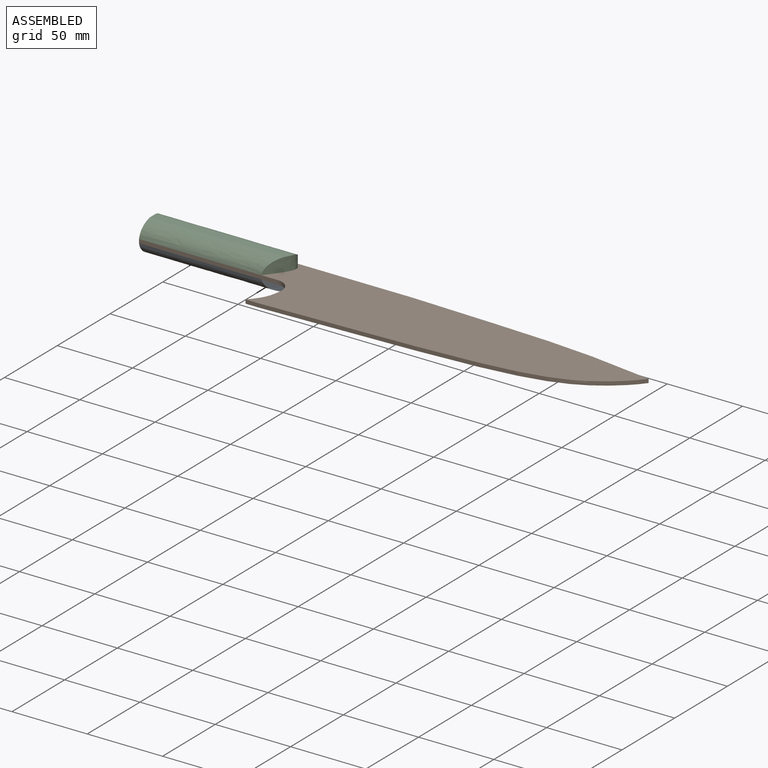
[diagram: assembled view]
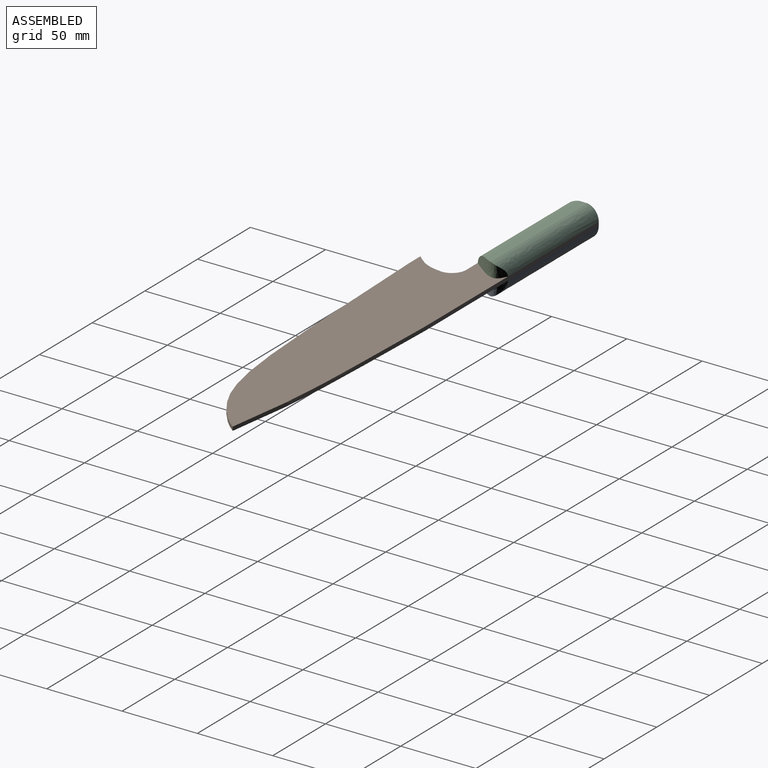
[diagram: assembled view, second angle]
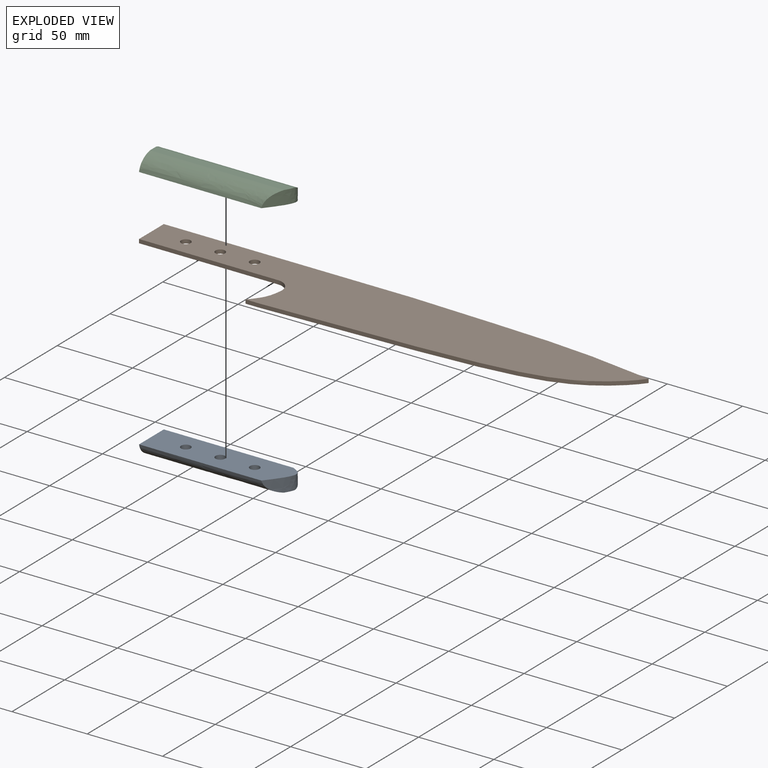
[diagram: exploded view]
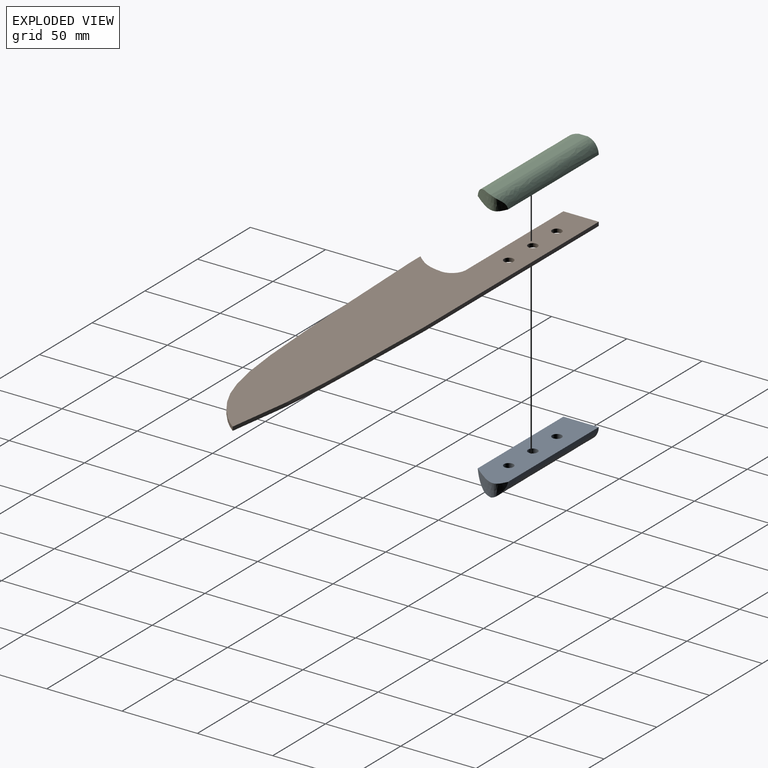
[diagram: exploded view, second angle]
ASSEMBLY  parts=3 mates=2
PART A: 12 faces, bbox 92.8x9.6x23.5 mm
  f0: plane 23.5x9.56mm, normal (-1,0,0), area 169.8mm2, adj f2,f3,f4,f5
  f1: extruded ~23.5x10.94mm, area 207.2mm2, adj f2,f3,f4,f5
  f2: plane 92x5.93mm, normal (0,1,0), area 523.1mm2, adj f0,f1,f3,f4
  f3: extruded ~89.07x10.35mm, area 1237.9mm2, adj f0,f1,f2,f5
  f4: extruded ~92.13x9.08mm, area 1135.6mm2, adj f0,f1,f2,f5
  f5: plane 92.82x23.5mm, normal (0,-1,0), area 1978.9mm2, adj f0,f1,f3,f4,f6,f8,f10
  f6: cylinder r=3.17mm len=6.35mm, axis (0,-1,0), area 126.7mm2, adj f5,f7
  f7: plane 6.35x6.35mm, normal (0,-1,0), area 31.7mm2, adj f6
  f8: cylinder r=3.17mm len=6.35mm, axis (0,-1,0), area 126.7mm2, adj f5,f9
  f9: plane 6.35x6.35mm, normal (0,-1,0), area 31.7mm2, adj f8
  f10: cylinder r=3.17mm len=6.35mm, axis (0,-1,0), area 126.7mm2, adj f5,f11
  f11: plane 6.35x6.35mm, normal (0,-1,0), area 31.7mm2, adj f10
PART B: 13 faces, bbox 330.2x54x2.5 mm
  f0: plane 165.1x2.54mm, normal (0,1,0), area 419.4mm2, adj f1,f7,f8,f9
  f1: plane 23.5x2.54mm, normal (-1,0,0), area 59.7mm2, adj f0,f2,f8,f9
  f2: plane 92.08x2.54mm, normal (0,-1,0), area 233.9mm2, adj f1,f3,f8,f9
  f3: cylinder r=9.53mm len=9.53mm, axis (0,0,-1), area 38mm2, adj f2,f4,f8,f9
  f4: extruded ~20.96x9.53mm, area 60mm2, adj f3,f5,f8,f9
  f5: plane 9.53x2.54mm, normal (0,-1,0), area 24.2mm2, adj f4,f6,f8,f9
  f6: extruded ~228.6x42.1mm, area 606.9mm2, adj f5,f7,f8,f9
  f7: extruded ~165.1x11.87mm, area 420.9mm2, adj f0,f6,f8,f9
  f8: plane 330.2x53.98mm, normal (0,0,1), area 12253.7mm2, adj f0,f1,f2,f3,f4,f5,f6,f7
  f9: plane 330.2x53.98mm, normal (0,0,-1), area 12253.7mm2, adj f0,f1,f2,f3,f4,f5,f6,f7
  f10: cylinder r=3.17mm len=6.35mm, axis (0,0,1), area 50.7mm2, adj f8,f9
  f11: cylinder r=3.17mm len=6.35mm, axis (0,0,1), area 50.7mm2, adj f8,f9
  f12: cylinder r=3.17mm len=6.35mm, axis (0,0,1), area 50.7mm2, adj f8,f9
PART C: 12 faces, bbox 92.8x9.6x23.5 mm
  f0: plane 92x5.93mm, normal (0,-1,0), area 523.1mm2, adj f1,f2,f3,f4
  f1: extruded ~89.07x10.35mm, area 1237.9mm2, adj f0,f3,f4,f5
  f2: extruded ~92.13x9.08mm, area 1135.6mm2, adj f0,f3,f4,f5
  f3: extruded ~23.5x10.94mm, area 207.2mm2, adj f0,f1,f2,f5
  f4: plane 23.5x9.56mm, normal (-1,0,0), area 169.8mm2, adj f0,f1,f2,f5
  f5: plane 92.82x23.5mm, normal (0,1,0), area 1978.9mm2, adj f1,f2,f3,f4,f6,f8,f10
  f6: cylinder r=3.17mm len=6.35mm, axis (0,1,0), area 126.7mm2, adj f5,f7
  f7: plane 6.35x6.35mm, normal (0,1,0), area 31.7mm2, adj f6
  f8: cylinder r=3.17mm len=6.35mm, axis (0,1,0), area 126.7mm2, adj f5,f9
  f9: plane 6.35x6.35mm, normal (0,1,0), area 31.7mm2, adj f8
  f10: cylinder r=3.17mm len=6.35mm, axis (0,1,0), area 126.7mm2, adj f5,f11
  f11: plane 6.35x6.35mm, normal (0,1,0), area 31.7mm2, adj f10
PLACE A rot(axis=(-1,0,0),90deg) t=(-127.26,8.38,-13.54)mm
PLACE B t=(-8.2,-6.86,-4.46)mm
PLACE C rot(axis=(-1,0,0),90deg) t=(-127.26,8.38,-14.18)mm
MATE fastened C.f10 <-> B.f12  axis (0,0,-1) through (-150.44,8.38,-1.92)mm
MATE fastened A.f10 <-> B.f12  axis (0,0,1) through (-150.44,8.38,-4.46)mm
